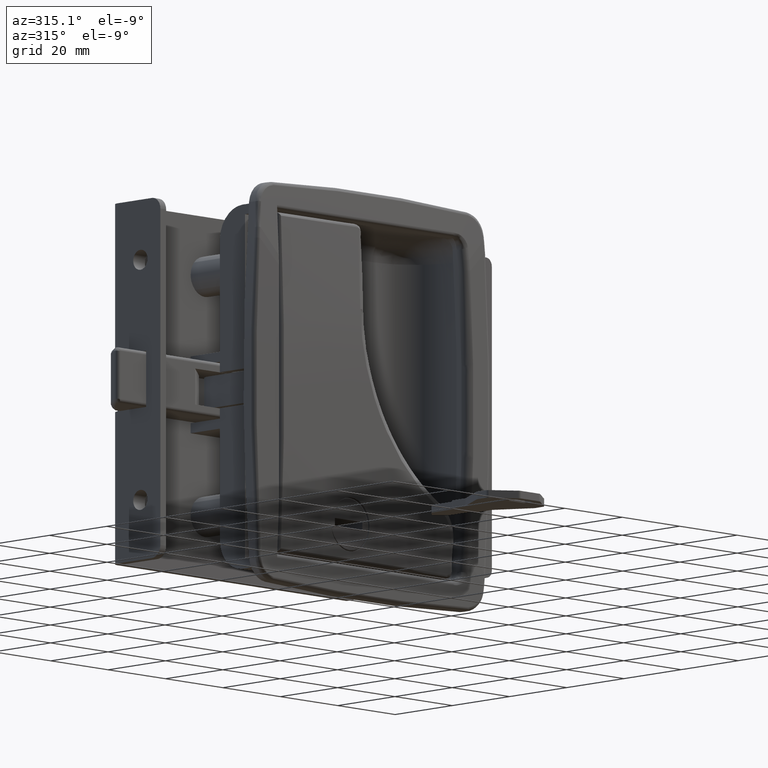
[diagram: clean part render]
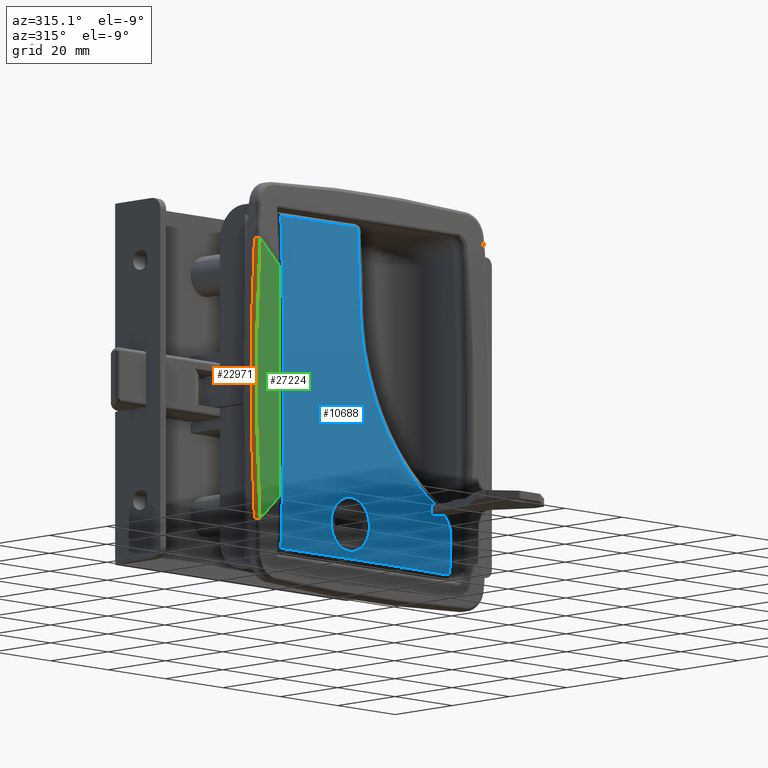
[diagram: same view with three faces highlighted in distinct colors, each labeled with its STEP entity id]
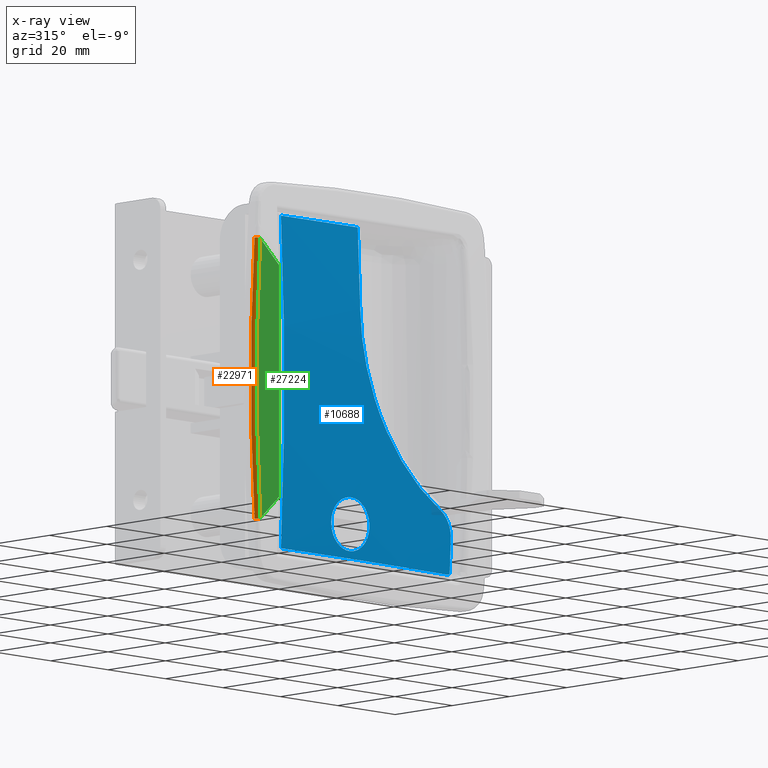
[diagram: x-ray of the same camera — body ghosted, the three highlighted faces saturated]
A machine part, auxiliary view with three faces highlighted in distinct colors.
The next image is the same camera in x-ray (body ghosted, the three faces saturated) — at least one of them is partly hidden behind the body in this view.
Their STEP definitions:

[orange] entity #22971 — the highlighted face is a freeform B-spline surface patch.
#22741=CARTESIAN_POINT('',(-40.284490174303997,-31.610345876716799,35.138241683333099));
#22742=VERTEX_POINT('',#22741);
#22743=CARTESIAN_POINT('',(-39.335762403849898,-32.609150444734013,35.069139929771900));
#22744=VERTEX_POINT('',#22743);
#22745=CARTESIAN_POINT('',(-40.284490174303997,-31.610345876716799,35.138241683333099));
#22746=CARTESIAN_POINT('',(-40.284561086535987,-31.713402865478219,35.137897235400409));
#22747=CARTESIAN_POINT('',(-40.254958750614421,-31.903627273371139,35.135201906114467));
#22748=CARTESIAN_POINT('',(-40.142911290856503,-32.142329326486511,35.126631485672441));
#22749=CARTESIAN_POINT('',(-39.983358317057672,-32.341059072482302,35.114905989977721));
#22750=CARTESIAN_POINT('',(-39.727771410793942,-32.533296856751029,35.096550487824828));
#22751=CARTESIAN_POINT('',(-39.485892724477893,-32.602037174638149,35.079563169840164));
#22752=CARTESIAN_POINT('',(-39.335762403849898,-32.609150444734013,35.069139929771900));
#22753=B_SPLINE_CURVE_WITH_KNOTS('',3,(#22745,#22746,#22747,#22748,#22749,#22750,#22751,#22752),.UNSPECIFIED.,.F.,.U.,(4,1,1,1,1,4),(0.000000270849371,0.309163048276833,0.570787489282866,0.784762741315042,1.070186831354640,1.522047837005313),.UNSPECIFIED.);
#22754=EDGE_CURVE('',#22742,#22744,#22753,.T.);
#22875=CARTESIAN_POINT('',(-39.304497501516657,-32.610680333801305,-35.419342707569363));
#22876=CARTESIAN_POINT('',(-39.312605364384495,-32.610283607556227,-35.302447805162409));
#22877=CARTESIAN_POINT('',(-39.320713227906886,-32.609886881279110,-35.185552893318579));
#22878=CARTESIAN_POINT('',(-40.139610833358873,-32.569817361428804,-23.379117926289659));
#22879=CARTESIAN_POINT('',(-40.543551704230801,-32.549063978085080,-11.689552789307243));
#22880=CARTESIAN_POINT('',(-40.543551704149898,-32.549063978089187,11.689552789314051));
#22881=CARTESIAN_POINT('',(-40.139610832530202,-32.569817361503524,23.379117926234692));
#22882=CARTESIAN_POINT('',(-39.320713227912677,-32.609886881278619,35.185552893355819));
#22883=CARTESIAN_POINT('',(-39.312605364396504,-32.610283607555097,35.302447805230315));
#22884=CARTESIAN_POINT('',(-39.304497501534868,-32.610680333799543,35.419342707667923));
#22885=CARTESIAN_POINT('',(-39.307963166117673,-32.610510835918063,-35.419586489908774));
#22886=CARTESIAN_POINT('',(-39.316071078994739,-32.610114069572305,-35.302690536228290));
#22887=CARTESIAN_POINT('',(-39.324178992199492,-32.609717303210452,-35.185794577822712));
#22888=CARTESIAN_POINT('',(-40.143079932147224,-32.569643817169244,-23.379278178755470));
#22889=CARTESIAN_POINT('',(-40.547022418605977,-32.548888473298049,-11.689632937878695));
#22890=CARTESIAN_POINT('',(-40.547022418525067,-32.548888473302149,11.689632937885516));
#22891=CARTESIAN_POINT('',(-40.143079931318319,-32.569643817226982,23.379278178700545));
#22892=CARTESIAN_POINT('',(-39.324178992205283,-32.609717303210132,35.185794577859966));
#22893=CARTESIAN_POINT('',(-39.316071079006747,-32.610114069571495,35.302690536296218));
#22894=CARTESIAN_POINT('',(-39.307963166135877,-32.610510835916799,35.419586490007340));
#22895=CARTESIAN_POINT('',(-40.260363918075555,-32.563931051069957,-35.486580417510687));
#22896=CARTESIAN_POINT('',(-40.268480279804017,-32.563523523621434,-35.369395192109501));
#22897=CARTESIAN_POINT('',(-40.276596551955087,-32.563116000670625,-35.252211260039971));
#22898=CARTESIAN_POINT('',(-41.095878906275402,-32.521979336405096,-23.423292026254760));
#22899=CARTESIAN_POINT('',(-41.500000000040444,-32.500698933793615,-11.711639874640818));
#22900=CARTESIAN_POINT('',(-41.499999999959343,-32.500698933793615,11.711639874647641));
#22901=CARTESIAN_POINT('',(-41.095878905382285,-32.521979331798988,23.423292026211637));
#22902=CARTESIAN_POINT('',(-40.276596551961539,-32.563116000716988,35.252211260077203));
#22903=CARTESIAN_POINT('',(-40.268480279817311,-32.563523523713975,35.369395192177350));
#22904=CARTESIAN_POINT('',(-40.260363918095685,-32.563931051208705,35.486580417609140));
#22905=CARTESIAN_POINT('',(-40.260150102039439,-31.608062042911627,-35.489634821389153));
#22906=CARTESIAN_POINT('',(-40.268263188627515,-31.607665787708839,-35.372507685344083));
#22907=CARTESIAN_POINT('',(-40.276376275542056,-31.607269532490108,-35.255380544585485));
#22908=CARTESIAN_POINT('',(-41.095799753810567,-31.567247672372773,-23.425514786856589));
#22909=CARTESIAN_POINT('',(-41.499999999999801,-31.546519103986061,-11.712751268870624));
#22910=CARTESIAN_POINT('',(-41.499999999999950,-31.546519103986061,11.712751268877444));
#22911=CARTESIAN_POINT('',(-41.095799753812486,-31.567247667766988,23.425514786879287));
#22912=CARTESIAN_POINT('',(-40.276376275539562,-31.607269532536414,35.255380544622042));
#22913=CARTESIAN_POINT('',(-40.268263188622910,-31.607665787801313,35.372507685410575));
#22914=CARTESIAN_POINT('',(-40.260150102032732,-31.608062043050264,35.489634821485602));
#22915=CARTESIAN_POINT('',(-40.260149327402523,-31.604599012467236,-35.489645887229287));
#22916=CARTESIAN_POINT('',(-40.268262402120648,-31.604202778853541,-35.372518961699576));
#22917=CARTESIAN_POINT('',(-40.276375477490895,-31.603806545208023,-35.255392026755970));
#22918=CARTESIAN_POINT('',(-41.095799466883854,-31.563786782080111,-23.425522844335838));
#22919=CARTESIAN_POINT('',(-41.499999999999680,-31.543059251851925,-11.712755298781532));
#22920=CARTESIAN_POINT('',(-41.500000000000128,-31.543059251851925,11.712755298788352));
#22921=CARTESIAN_POINT('',(-41.095799466889019,-31.563786777474327,23.425522844358774));
#22922=CARTESIAN_POINT('',(-40.276375477488358,-31.603806545254333,35.255392026792521));
#22923=CARTESIAN_POINT('',(-40.268262402115973,-31.604202778946011,35.372518961766062));
#22924=CARTESIAN_POINT('',(-40.260149327395709,-31.604599012605881,35.489645887325722));
#22932=(BOUNDED_SURFACE()B_SPLINE_SURFACE(3,2,((#22875,#22885,#22895,#22905,#22915),(#22876,#22886,#22896,#22906,#22916),(#22877,#22887,#22897,#22907,#22917),(#22878,#22888,#22898,#22908,#22918),(#22879,#22889,#22899,#22909,#22919),(#22880,#22890,#22900,#22910,#22920),(#22881,#22891,#22901,#22911,#22921),(#22882,#22892,#22902,#22912,#22922),(#22883,#22893,#22903,#22913,#22923),(#22884,#22894,#22904,#22914,#22924)),.UNSPECIFIED.,.F.,.F.,.U.)B_SPLINE_SURFACE_WITH_KNOTS((4,2,2,2,4),(3,1,1,3),(0.0,0.352225384790067,35.574764650979837,70.797303917169614,71.149529302050212),(0.0,0.008103684996448,1.608128516151433,1.616196381773072),.UNSPECIFIED.)GEOMETRIC_REPRESENTATION_ITEM()RATIONAL_B_SPLINE_SURFACE(((1.002794404944564,1.001397202472282,0.724130608385923,1.001391026649917,1.002782053299834),(1.002794364466981,1.001397182233490,0.724134604415982,1.001391006500584,1.002782013001168),(1.002794323989398,1.001397161994699,0.724138600446040,1.001390986351251,1.002781972702501),(1.002790235753440,1.001395117876720,0.724542199490862,1.001388951268547,1.002777902537095),(1.002788208820377,1.001394104410188,0.724742302483163,1.001387942281674,1.002775884563347),(1.002788208820377,1.001394104410188,0.724742302483163,1.001387942281674,1.002775884563347),(1.002790235753440,1.001395117876720,0.724542199490858,1.001388951268547,1.002777902537095),(1.002794323989398,1.001397161994699,0.724138600446044,1.001390986351251,1.002781972702501),(1.002794364466981,1.001397182233490,0.724134604415984,1.001391006500584,1.002782013001168),(1.002794404944564,1.001397202472282,0.724130608385925,1.001391026649917,1.002782053299834)))REPRESENTATION_ITEM('')SURFACE());
#22933=CARTESIAN_POINT('',(-40.284490174304551,-31.610345876716849,-35.138241683326299));
#22934=VERTEX_POINT('',#22933);
#22935=CARTESIAN_POINT('',(-39.335762403845301,-32.609150444734148,-35.069139929770053));
#22936=VERTEX_POINT('',#22935);
#22937=CARTESIAN_POINT('',(-40.284490174304551,-31.610345876716849,-35.138241683326299));
#22938=CARTESIAN_POINT('',(-40.284786293162803,-31.761016620945998,-35.137751425775683));
#22939=CARTESIAN_POINT('',(-40.229912351355857,-31.998586672310811,-35.133145099661903));
#22940=CARTESIAN_POINT('',(-40.054373539699270,-32.265611893520479,-35.120080788242348));
#22941=CARTESIAN_POINT('',(-39.877720450963167,-32.426819884466489,-35.107298010787801));
#22942=CARTESIAN_POINT('',(-39.642077921447132,-32.559757736428473,-35.090525027180732));
#22943=CARTESIAN_POINT('',(-39.454263774766879,-32.603450457867737,-35.077367525987697));
#22944=CARTESIAN_POINT('',(-39.335762403845301,-32.609150444734148,-35.069139929770053));
#22945=B_SPLINE_CURVE_WITH_KNOTS('',3,(#22937,#22938,#22939,#22940,#22941,#22942,#22943,#22944),.UNSPECIFIED.,.F.,.U.,(4,1,1,1,1,4),(0.000000270844896,0.451861276497756,0.713472292749553,0.951260618572377,1.165318460792908,1.522047837010032),.UNSPECIFIED.);
#22946=EDGE_CURVE('',#22934,#22936,#22945,.T.);
#22947=ORIENTED_EDGE('',*,*,#22946,.T.);
#22948=CARTESIAN_POINT('',(-39.335762403849898,-32.609150444734013,35.069139929771900));
#22949=CARTESIAN_POINT('',(-39.741160981329273,-32.589310095949912,29.224283274814770));
#22950=CARTESIAN_POINT('',(-40.348348507564680,-32.558976036192547,17.534569964886408));
#22951=CARTESIAN_POINT('',(-40.651579961243343,-32.543580700657401,9.250413E-013));
#22952=CARTESIAN_POINT('',(-40.348348071415707,-32.558975771315602,-17.534569964884518));
#22953=CARTESIAN_POINT('',(-39.741160981329628,-32.589310095949841,-29.224283274808261));
#22954=CARTESIAN_POINT('',(-39.335762403845301,-32.609150444734148,-35.069139929770053));
#22955=B_SPLINE_CURVE_WITH_KNOTS('',3,(#22948,#22949,#22950,#22951,#22952,#22953,#22954),.UNSPECIFIED.,.F.,.U.,(4,1,1,1,4),(0.0,0.250000000000000,0.500000000000000,0.750000000000000,1.0),.UNSPECIFIED.);
#22956=EDGE_CURVE('',#22744,#22936,#22955,.T.);
#22957=ORIENTED_EDGE('',*,*,#22956,.F.);
#22958=ORIENTED_EDGE('',*,*,#22754,.F.);
#22959=CARTESIAN_POINT('',(-40.284490174304551,-31.610345876716849,-35.138241683326299));
#22960=CARTESIAN_POINT('',(-40.690145532231938,-31.590532003122899,-29.281868069438019));
#22961=CARTESIAN_POINT('',(-41.297717652521392,-31.560238421485099,-17.569120841661451));
#22962=CARTESIAN_POINT('',(-41.601141173739229,-31.544863629662949,3.399402E-012));
#22963=CARTESIAN_POINT('',(-41.297717216095791,-31.560238156961631,17.569120841668202));
#22964=CARTESIAN_POINT('',(-40.690145532231497,-31.590532003122920,29.281868069444879));
#22965=CARTESIAN_POINT('',(-40.284490174304047,-31.610345876716899,35.138241683333142));
#22966=B_SPLINE_CURVE_WITH_KNOTS('',3,(#22959,#22960,#22961,#22962,#22963,#22964,#22965),.UNSPECIFIED.,.F.,.U.,(4,1,1,1,4),(0.0,0.250000000000000,0.500000000000000,0.750000000000000,1.0),.UNSPECIFIED.);
#22967=EDGE_CURVE('',#22934,#22742,#22966,.T.);
#22968=ORIENTED_EDGE('',*,*,#22967,.F.);
#22969=EDGE_LOOP('',(#22947,#22957,#22958,#22968));
#22970=FACE_OUTER_BOUND('',#22969,.T.);
#22971=ADVANCED_FACE('',(#22970),#22932,.T.);

[blue] entity #10688 — the highlighted face is a freeform B-spline surface patch.
#7058=CARTESIAN_POINT('',(-5.215457676952073,-32.446535083494162,-39.093015618912347));
#7059=VERTEX_POINT('',#7058);
#7065=CARTESIAN_POINT('',(-3.253997342440973,-32.496264386477897,-37.729916652667072));
#7066=VERTEX_POINT('',#7065);
#7067=CARTESIAN_POINT('',(-3.253997342440973,-32.496264386477897,-37.729916652667072));
#7068=CARTESIAN_POINT('',(-3.819097418378550,-32.474263355768933,-38.296766227826232));
#7069=CARTESIAN_POINT('',(-4.486997868793683,-32.457334004304052,-38.760825319167182));
#7070=CARTESIAN_POINT('',(-5.215457676952073,-32.446535083494162,-39.093015618912347));
#7071=B_SPLINE_CURVE_WITH_KNOTS('',3,(#7067,#7068,#7069,#7070),.UNSPECIFIED.,.F.,.U.,(4,4),(0.000000010450109,2.401951429445592),.UNSPECIFIED.);
#7072=EDGE_CURVE('',#7066,#7059,#7071,.T.);
#7074=CARTESIAN_POINT('',(-3.267356618105063,-32.913956256110779,-28.256120032657972));
#7075=VERTEX_POINT('',#7074);
#7076=CARTESIAN_POINT('',(-3.267356618105063,-32.913956256110779,-28.256120032657972));
#7077=CARTESIAN_POINT('',(-2.975823143123344,-32.899637697831011,-28.546166297496260));
#7078=CARTESIAN_POINT('',(-2.464154457305730,-32.869931321779731,-29.159030959920759));
#7079=CARTESIAN_POINT('',(-1.892420633681909,-32.822661541318361,-30.163159429436458));
#7080=CARTESIAN_POINT('',(-1.494600050811732,-32.772780249478387,-31.247273423269849));
#7081=CARTESIAN_POINT('',(-1.307754633141462,-32.726436983693972,-32.276290419694391));
#7082=CARTESIAN_POINT('',(-1.279951274293947,-32.679101648730558,-33.346781976601513));
#7083=CARTESIAN_POINT('',(-1.429834883689236,-32.625721227588997,-34.575600214931988));
#7084=CARTESIAN_POINT('',(-1.986477057305995,-32.558492902683469,-36.167074938987632));
#7085=CARTESIAN_POINT('',(-2.749861683501447,-32.515840480771331,-37.225701064926682));
#7086=CARTESIAN_POINT('',(-3.253997342440973,-32.496264386477897,-37.729916652667072));
#7087=B_SPLINE_CURVE_WITH_KNOTS('',3,(#7076,#7077,#7078,#7079,#7080,#7081,#7082,#7083,#7084,#7085,#7086),.UNSPECIFIED.,.F.,.U.,(4,1,1,1,1,1,1,1,4),(0.000000124942098,1.234466594172197,2.386681905797076,3.456595710132849,4.691076103395082,5.514044362711752,6.666255387384280,8.394559218409963,10.534338121824280),.UNSPECIFIED.);
#7088=EDGE_CURVE('',#7075,#7066,#7087,.T.);
#7090=CARTESIAN_POINT('',(-12.744001876423150,-32.963165511445297,-28.269482541174870));
#7091=VERTEX_POINT('',#7090);
#7092=CARTESIAN_POINT('',(-12.744001876423150,-32.963165511445297,-28.269482541174870));
#7093=CARTESIAN_POINT('',(-12.414882770908431,-32.975965232454612,-27.939864476631051));
#7094=CARTESIAN_POINT('',(-11.666066320626459,-32.998812036026237,-27.332278143020730));
#7095=CARTESIAN_POINT('',(-10.262830275410250,-33.022649805663107,-26.624193829282071));
#7096=CARTESIAN_POINT('',(-8.805841640666232,-33.029489267084223,-26.295335427778269));
#7097=CARTESIAN_POINT('',(-7.540320594482363,-33.022909238275822,-26.293745494144702));
#7098=CARTESIAN_POINT('',(-6.535080606504475,-33.011125800774167,-26.441232549752598));
#7099=CARTESIAN_POINT('',(-5.401037084640586,-32.990439042018437,-26.775350537146881));
#7100=CARTESIAN_POINT('',(-4.255577919400163,-32.957551281887717,-27.384906982743999));
#7101=CARTESIAN_POINT('',(-3.539061100647165,-32.927313997005420,-27.985469284672710));
#7102=CARTESIAN_POINT('',(-3.267356618105063,-32.913956256110779,-28.256120032657972));
#7103=B_SPLINE_CURVE_WITH_KNOTS('',3,(#7092,#7093,#7094,#7095,#7096,#7097,#7098,#7099,#7100,#7101,#7102),.UNSPECIFIED.,.F.,.U.,(4,1,1,1,1,1,1,1,4),(0.000000129585898,1.397920874985998,2.878080089392759,4.687154438460725,5.838379014545928,6.660682595348583,7.729686292404740,9.374306941049273,10.525531714157561),.UNSPECIFIED.);
#7104=EDGE_CURVE('',#7091,#7075,#7103,.T.);
#7106=CARTESIAN_POINT('',(-14.094350200129281,-32.639007267599141,-35.784162674484733));
#7107=VERTEX_POINT('',#7106);
#7108=CARTESIAN_POINT('',(-14.094350200129281,-32.639007267599141,-35.784162674484733));
#7109=CARTESIAN_POINT('',(-14.367722578561519,-32.666725325610820,-35.187936731319880));
#7110=CARTESIAN_POINT('',(-14.671134464921559,-32.714495613777537,-34.140391575453407));
#7111=CARTESIAN_POINT('',(-14.725137362928910,-32.773746766095357,-32.802672808861438));
#7112=CARTESIAN_POINT('',(-14.607352822047380,-32.819543275305527,-31.749710215234920));
#7113=CARTESIAN_POINT('',(-14.346224657745971,-32.862570133521977,-30.742496843051828));
#7114=CARTESIAN_POINT('',(-13.771593975996829,-32.914909121460511,-29.486671103918990));
#7115=CARTESIAN_POINT('',(-13.162939981739941,-32.946883085797779,-28.688785767758802));
#7116=CARTESIAN_POINT('',(-12.744001876423150,-32.963165511445297,-28.269482541174870));
#7117=B_SPLINE_CURVE_WITH_KNOTS('',3,(#7108,#7109,#7110,#7111,#7112,#7113,#7114,#7115,#7116),.UNSPECIFIED.,.F.,.U.,(4,1,1,1,1,1,4),(0.000000083661309,1.969385228032408,3.239969848843215,4.002335537249531,5.145797707855491,6.352860845901360,8.131656643578975),.UNSPECIFIED.);
#7118=EDGE_CURVE('',#7107,#7091,#7117,.T.);
#7157=CARTESIAN_POINT('',(-12.732331631413469,-32.545584225266687,-37.741595366524287));
#7158=VERTEX_POINT('',#7157);
#7159=CARTESIAN_POINT('',(-12.732331631413469,-32.545584225266687,-37.741595366524287));
#7160=CARTESIAN_POINT('',(-13.298678850866480,-32.573418765802487,-37.177520593645632));
#7161=CARTESIAN_POINT('',(-13.762477730296821,-32.605225546772267,-36.511103943972813));
#7162=CARTESIAN_POINT('',(-14.094350200129281,-32.639007267599141,-35.784162674484733));
#7163=B_SPLINE_CURVE_WITH_KNOTS('',3,(#7159,#7160,#7161,#7162),.UNSPECIFIED.,.F.,.U.,(4,4),(2.052900E-010,2.399301109942204),.UNSPECIFIED.);
#7164=EDGE_CURVE('',#7158,#7107,#7163,.T.);
#7166=CARTESIAN_POINT('',(-5.215457676952073,-32.446535083494162,-39.093015618912347));
#7167=CARTESIAN_POINT('',(-5.754533192480133,-32.438525738560408,-39.338971214404260));
#7168=CARTESIAN_POINT('',(-6.714594299463759,-32.430712057595798,-39.630656349113508));
#7169=CARTESIAN_POINT('',(-8.261685809402595,-32.433857927876723,-39.743649979267218));
#7170=CARTESIAN_POINT('',(-9.570730769562141,-32.448863899030492,-39.559196491119053));
#7171=CARTESIAN_POINT('',(-10.749974501464759,-32.473657362623442,-39.137218298947232));
#7172=CARTESIAN_POINT('',(-11.774213624434459,-32.503683685265869,-38.578046378333042));
#7173=CARTESIAN_POINT('',(-12.402860784267840,-32.529370819361993,-38.070178383016028));
#7174=CARTESIAN_POINT('',(-12.732331631413469,-32.545584225266687,-37.741595366524287));
#7175=B_SPLINE_CURVE_WITH_KNOTS('',3,(#7166,#7167,#7168,#7169,#7170,#7171,#7172,#7173,#7174),.UNSPECIFIED.,.F.,.U.,(4,1,1,1,1,1,4),(0.000000059049007,1.777717869689381,2.984049147174918,4.634770318593074,5.714099720721882,6.729948731299133,8.126726825811545),.UNSPECIFIED.);
#7176=EDGE_CURVE('',#7059,#7158,#7175,.T.);
#9152=CARTESIAN_POINT('',(28.064796894004299,-31.292009073200749,-41.231640802182703));
#9153=VERTEX_POINT('',#9152);
#9164=CARTESIAN_POINT('',(26.973415502319249,-31.331713061999899,-41.555151673850851));
#9165=VERTEX_POINT('',#9164);
#9166=CARTESIAN_POINT('',(26.973415502319249,-31.331713061999899,-41.555151673850851));
#9167=CARTESIAN_POINT('',(27.213746840772899,-31.319184283640059,-41.555431511475561));
#9168=CARTESIAN_POINT('',(27.598260388062162,-31.302888310891060,-41.485047637003483));
#9169=CARTESIAN_POINT('',(27.943758771642361,-31.294147404756419,-41.310310338609028));
#9170=CARTESIAN_POINT('',(28.064796894004299,-31.292009073200749,-41.231640802182703));
#9171=B_SPLINE_CURVE_WITH_KNOTS('',3,(#9166,#9167,#9168,#9169,#9170),.UNSPECIFIED.,.F.,.U.,(4,1,4),(0.000000030340765,0.721869359934803,1.155001399268523),.UNSPECIFIED.);
#9172=EDGE_CURVE('',#9165,#9153,#9171,.T.);
#9379=CARTESIAN_POINT('',(28.033314899863299,-31.697657675222800,-33.109043948162252));
#9380=VERTEX_POINT('',#9379);
#9394=CARTESIAN_POINT('',(28.064796894004299,-31.292009073200749,-41.231640802182703));
#9395=CARTESIAN_POINT('',(28.040505114781631,-31.345653074411981,-40.264485364555647));
#9396=CARTESIAN_POINT('',(28.006435465683349,-31.420889732914102,-38.908032793223889));
#9397=CARTESIAN_POINT('',(27.954741137279289,-31.517208182938059,-37.051383030878007));
#9398=CARTESIAN_POINT('',(27.946436123114690,-31.582950080720089,-35.711223728047827));
#9399=CARTESIAN_POINT('',(27.964751133005631,-31.645351871234119,-34.359539948370653));
#9400=CARTESIAN_POINT('',(28.011365250450400,-31.680912765886230,-33.509371264685043));
#9401=CARTESIAN_POINT('',(28.033314899863299,-31.697657675222800,-33.109043948162252));
#9402=B_SPLINE_CURVE_WITH_KNOTS('',3,(#9394,#9395,#9396,#9397,#9398,#9399,#9400,#9401),.UNSPECIFIED.,.F.,.U.,(4,1,1,1,1,4),(0.0,0.357294392214029,0.501111691239890,0.685791161082037,0.852045383786149,1.0),.UNSPECIFIED.);
#9403=EDGE_CURVE('',#9153,#9380,#9402,.T.);
#9468=CARTESIAN_POINT('',(23.921794747538652,-32.190746322301813,-25.893107604950199));
#9469=VERTEX_POINT('',#9468);
#9482=CARTESIAN_POINT('',(28.033314899863299,-31.697657675222800,-33.109043948162252));
#9483=CARTESIAN_POINT('',(28.063636827639090,-31.716300376721449,-32.651503236481780));
#9484=CARTESIAN_POINT('',(28.042169930689131,-31.754369975382868,-31.800090593639219));
#9485=CARTESIAN_POINT('',(27.816365444264431,-31.814339155432620,-30.649805589762821));
#9486=CARTESIAN_POINT('',(27.438626080856540,-31.878003736463729,-29.565878548684580));
#9487=CARTESIAN_POINT('',(26.773062382812370,-31.961861600304420,-28.305211553528899));
#9488=CARTESIAN_POINT('',(25.619960206759959,-32.070965055512517,-26.950564264720899));
#9489=CARTESIAN_POINT('',(24.514658845717669,-32.151958259667339,-26.192823159024719));
#9490=CARTESIAN_POINT('',(23.921794747538652,-32.190746322301813,-25.893107604950199));
#9491=B_SPLINE_CURVE_WITH_KNOTS('',3,(#9482,#9483,#9484,#9485,#9486,#9487,#9488,#9489,#9490),.UNSPECIFIED.,.F.,.U.,(4,1,1,1,1,1,4),(0.000000061178470,1.376762242393810,2.547022132395624,3.510773904193054,4.818652477676979,6.814993997085495,8.811301680203473),.UNSPECIFIED.);
#9492=EDGE_CURVE('',#9380,#9469,#9491,.T.);
#9610=CARTESIAN_POINT('',(-4.975787201396299,-33.167283267818704,21.110424986676851));
#9611=VERTEX_POINT('',#9610);
#9624=CARTESIAN_POINT('',(23.921794747538652,-32.190746322301813,-25.893107604950199));
#9625=CARTESIAN_POINT('',(20.955406907930200,-32.384794223969763,-24.395402780010269));
#9626=CARTESIAN_POINT('',(16.269938471840788,-32.674657218595847,-21.439537669480970));
#9627=CARTESIAN_POINT('',(10.975319586572530,-32.965415874815449,-16.794464690625549));
#9628=CARTESIAN_POINT('',(7.332182038247901,-33.144239561565691,-12.844791135700969));
#9629=CARTESIAN_POINT('',(3.921044349733950,-33.290634102432293,-8.400290196768561));
#9630=CARTESIAN_POINT('',(0.577944666173112,-33.399076137833831,-2.801819462314316));
#9631=CARTESIAN_POINT('',(-2.171902354531145,-33.435014769909444,3.692314787873054));
#9632=CARTESIAN_POINT('',(-3.865640689810570,-33.396883777162202,9.830002066436560));
#9633=CARTESIAN_POINT('',(-4.779314442916955,-33.307278469834827,15.589659484267910));
#9634=CARTESIAN_POINT('',(-4.975554438174426,-33.220563577823143,19.219892304324620));
#9635=CARTESIAN_POINT('',(-4.975787201396299,-33.167283267818704,21.110424986676851));
#9636=B_SPLINE_CURVE_WITH_KNOTS('',3,(#9624,#9625,#9626,#9627,#9628,#9629,#9630,#9631,#9632,#9633,#9634,#9635),.UNSPECIFIED.,.F.,.U.,(4,1,1,1,1,1,1,1,1,4),(0.000000023838901,9.986001021343427,16.567699949683561,21.106803292772771,26.099801338498480,33.362336768016057,40.624899922733242,47.206593363803357,52.426568938737319,58.100419839795130),.UNSPECIFIED.);
#9637=EDGE_CURVE('',#9469,#9611,#9636,.T.);
#9689=CARTESIAN_POINT('',(-4.975787201128401,-32.315322411444043,41.488204375687097));
#9690=VERTEX_POINT('',#9689);
#9713=CARTESIAN_POINT('',(-4.975787201396278,-33.167283267818817,21.110424986676861));
#9714=CARTESIAN_POINT('',(-4.974925407447117,-32.975746632031047,27.906463264008639));
#9715=CARTESIAN_POINT('',(-4.974924755371672,-32.691724612290422,34.699895019446188));
#9716=CARTESIAN_POINT('',(-4.975787201128401,-32.315322411444043,41.488204375687097));
#9717=QUASI_UNIFORM_CURVE('',3,(#9713,#9714,#9715,#9716),.UNSPECIFIED.,.F.,.U.);
#9718=EDGE_CURVE('',#9611,#9690,#9717,.T.);
#9891=CARTESIAN_POINT('',(-5.490401587933620,-32.316199347866650,41.555452074709400));
#9892=VERTEX_POINT('',#9891);
#9904=CARTESIAN_POINT('',(-4.975787201128401,-32.315322411444043,41.488204375687097));
#9905=CARTESIAN_POINT('',(-5.143426195893383,-32.314404486293093,41.532878911304472));
#9906=CARTESIAN_POINT('',(-5.316914074752036,-32.314699493859493,41.555561458583718));
#9907=CARTESIAN_POINT('',(-5.490401587933620,-32.316199347866650,41.555452074709400));
#9908=B_SPLINE_CURVE_WITH_KNOTS('',3,(#9904,#9905,#9906,#9907),.UNSPECIFIED.,.F.,.U.,(4,4),(3.561001E-009,0.520472990203763),.UNSPECIFIED.);
#9909=EDGE_CURVE('',#9690,#9892,#9908,.T.);
#9932=CARTESIAN_POINT('',(-31.526143982982301,-32.087397920849803,41.555452074709400));
#9933=VERTEX_POINT('',#9932);
#9934=CARTESIAN_POINT('',(-5.490401587933620,-32.316199347866650,41.555452074709400));
#9935=CARTESIAN_POINT('',(-18.510263503469123,-32.428326160968474,41.555452074709407));
#9936=CARTESIAN_POINT('',(-31.526143982982301,-32.087397920849803,41.555452074709400));
#9944=(BOUNDED_CURVE()B_SPLINE_CURVE(2,(#9934,#9935,#9936),.UNSPECIFIED.,.F.,.U.)CURVE()GEOMETRIC_REPRESENTATION_ITEM()QUASI_UNIFORM_CURVE()RATIONAL_B_SPLINE_CURVE((1.0,0.999848632229545,1.0))REPRESENTATION_ITEM(''));
#9945=EDGE_CURVE('',#9892,#9933,#9944,.T.);
#10030=CARTESIAN_POINT('',(-31.526143982982301,-32.087414610032397,-41.555151673850851));
#10031=VERTEX_POINT('',#10030);
#10032=CARTESIAN_POINT('',(-31.526143982982301,-32.087414610032397,-41.555151673850851));
#10033=CARTESIAN_POINT('',(-2.261580994102952,-32.853948672077252,-41.555151673850851));
#10034=CARTESIAN_POINT('',(26.973415502319249,-31.331713061999899,-41.555151673850851));
#10042=(BOUNDED_CURVE()B_SPLINE_CURVE(2,(#10032,#10033,#10034),.UNSPECIFIED.,.F.,.U.)CURVE()GEOMETRIC_REPRESENTATION_ITEM()QUASI_UNIFORM_CURVE()RATIONAL_B_SPLINE_CURVE((1.0,0.999235511861669,1.0))REPRESENTATION_ITEM(''));
#10043=EDGE_CURVE('',#10031,#9165,#10042,.T.);
#10104=CARTESIAN_POINT('',(-31.526143982982301,-32.087397920849803,41.555452074709400));
#10105=CARTESIAN_POINT('',(-31.526143982982294,-34.396068183253476,0.000150664024332));
#10106=CARTESIAN_POINT('',(-31.526143982982301,-32.087414610032397,-41.555151673850851));
#10114=(BOUNDED_CURVE()B_SPLINE_CURVE(2,(#10104,#10105,#10106),.UNSPECIFIED.,.F.,.U.)CURVE()GEOMETRIC_REPRESENTATION_ITEM()QUASI_UNIFORM_CURVE()RATIONAL_B_SPLINE_CURVE((1.0,0.998460307912104,1.0))REPRESENTATION_ITEM(''));
#10115=EDGE_CURVE('',#9933,#10031,#10114,.T.);
#10645=CARTESIAN_POINT('',(-34.514822614389949,-31.760267864713246,-45.717430976922238));
#10646=CARTESIAN_POINT('',(-18.392115201328235,-32.245701629320592,-45.742058650839901));
#10647=CARTESIAN_POINT('',(14.397478664914441,-31.822382837076539,-45.731576504225600));
#10648=CARTESIAN_POINT('',(31.032351271496609,-30.867537450376343,-45.694479983248371));
#10649=CARTESIAN_POINT('',(-34.519075940761510,-32.590339950155958,-32.140432928749966));
#10650=CARTESIAN_POINT('',(-18.391053728073668,-33.076318611073170,-32.158774529006628));
#10651=CARTESIAN_POINT('',(14.409353134498810,-32.652860221352981,-32.148288925703802));
#10652=CARTESIAN_POINT('',(31.049702825105985,-31.697289483711373,-32.117896410203869));
#10653=CARTESIAN_POINT('',(-34.519075940761518,-33.722981013391227,13.600984795840514));
#10654=CARTESIAN_POINT('',(-18.391053728073668,-34.209484758263962,13.603848575937601));
#10655=CARTESIAN_POINT('',(14.409353134498810,-33.786026368543773,13.614334179240419));
#10656=CARTESIAN_POINT('',(31.049702825105985,-32.829895338888392,13.622099446018971));
#10657=CARTESIAN_POINT('',(-34.495346349178064,-31.762274327820009,45.694227190203080));
#10658=CARTESIAN_POINT('',(-18.396975754033743,-32.246975999589360,45.711936527327062));
#10659=CARTESIAN_POINT('',(14.343104722833699,-31.824296432956800,45.722402845547499));
#10660=CARTESIAN_POINT('',(30.952897345386791,-30.870891238855936,45.714307243555453));
#10668=(BOUNDED_SURFACE()B_SPLINE_SURFACE(2,2,((#10645,#10649,#10653,#10657),(#10646,#10650,#10654,#10658),(#10647,#10651,#10655,#10659),(#10648,#10652,#10656,#10660)),.UNSPECIFIED.,.F.,.F.,.U.)B_SPLINE_SURFACE_WITH_KNOTS((3,1,3),(3,1,3),(14.889456244659421,47.143900810886898,80.462686089324947),(20.778160535240168,47.981758873801127,112.285335100746200),.UNSPECIFIED.)GEOMETRIC_REPRESENTATION_ITEM()RATIONAL_B_SPLINE_SURFACE(((1.000793361692029,1.000463592547162,1.000463592547162,1.002306177685206),(1.000329769144867,1.0,1.0,1.001842585138044),(1.000329769144867,1.0,1.0,1.001842585138044),(1.000824461990763,1.000494692845896,1.000494692845896,1.002337277983941)))REPRESENTATION_ITEM('')SURFACE());
#10669=ORIENTED_EDGE('',*,*,#10043,.T.);
#10670=ORIENTED_EDGE('',*,*,#9172,.T.);
#10671=ORIENTED_EDGE('',*,*,#9403,.T.);
#10672=ORIENTED_EDGE('',*,*,#9492,.T.);
#10673=ORIENTED_EDGE('',*,*,#9637,.T.);
#10674=ORIENTED_EDGE('',*,*,#9718,.T.);
#10675=ORIENTED_EDGE('',*,*,#9909,.T.);
#10676=ORIENTED_EDGE('',*,*,#9945,.T.);
#10677=ORIENTED_EDGE('',*,*,#10115,.T.);
#10678=EDGE_LOOP('',(#10669,#10670,#10671,#10672,#10673,#10674,#10675,#10676,#10677));
#10679=FACE_OUTER_BOUND('',#10678,.T.);
#10680=ORIENTED_EDGE('',*,*,#7104,.T.);
#10681=ORIENTED_EDGE('',*,*,#7088,.T.);
#10682=ORIENTED_EDGE('',*,*,#7072,.T.);
#10683=ORIENTED_EDGE('',*,*,#7176,.T.);
#10684=ORIENTED_EDGE('',*,*,#7164,.T.);
#10685=ORIENTED_EDGE('',*,*,#7118,.T.);
#10686=EDGE_LOOP('',(#10680,#10681,#10682,#10683,#10684,#10685));
#10687=FACE_BOUND('',#10686,.T.);
#10688=ADVANCED_FACE('',(#10679,#10687),#10668,.T.);

[green] entity #27224 — the highlighted face is a freeform B-spline surface patch.
#22743=CARTESIAN_POINT('',(-39.335762403849898,-32.609150444734013,35.069139929771900));
#22744=VERTEX_POINT('',#22743);
#22935=CARTESIAN_POINT('',(-39.335762403845301,-32.609150444734148,-35.069139929770053));
#22936=VERTEX_POINT('',#22935);
#22948=CARTESIAN_POINT('',(-39.335762403849898,-32.609150444734013,35.069139929771900));
#22949=CARTESIAN_POINT('',(-39.741160981329273,-32.589310095949912,29.224283274814770));
#22950=CARTESIAN_POINT('',(-40.348348507564680,-32.558976036192547,17.534569964886408));
#22951=CARTESIAN_POINT('',(-40.651579961243343,-32.543580700657401,9.250413E-013));
#22952=CARTESIAN_POINT('',(-40.348348071415707,-32.558975771315602,-17.534569964884518));
#22953=CARTESIAN_POINT('',(-39.741160981329628,-32.589310095949841,-29.224283274808261));
#22954=CARTESIAN_POINT('',(-39.335762403845301,-32.609150444734148,-35.069139929770053));
#22955=B_SPLINE_CURVE_WITH_KNOTS('',3,(#22948,#22949,#22950,#22951,#22952,#22953,#22954),.UNSPECIFIED.,.F.,.U.,(4,1,1,1,4),(0.0,0.250000000000000,0.500000000000000,0.750000000000000,1.0),.UNSPECIFIED.);
#22956=EDGE_CURVE('',#22744,#22936,#22955,.T.);
#23683=CARTESIAN_POINT('',(-33.0,-32.892356351772257,28.966783803954250));
#23684=VERTEX_POINT('',#23683);
#23685=CARTESIAN_POINT('',(-33.0,-32.892356351772257,28.966783803954250));
#23686=CARTESIAN_POINT('',(-39.335762403849898,-32.609150444734013,35.069139929771900));
#23687=QUASI_UNIFORM_CURVE('',1,(#23685,#23686),.UNSPECIFIED.,.F.,.U.);
#23688=EDGE_CURVE('',#23684,#22744,#23687,.T.);
#23714=CARTESIAN_POINT('',(-33.0,-32.892356351772257,-28.966783803951351));
#23715=VERTEX_POINT('',#23714);
#23716=CARTESIAN_POINT('',(-39.335762403845301,-32.609150444734148,-35.069139929770053));
#23717=CARTESIAN_POINT('',(-33.0,-32.892356351772257,-28.966783803951351));
#23718=QUASI_UNIFORM_CURVE('',1,(#23716,#23717),.UNSPECIFIED.,.F.,.U.);
#23719=EDGE_CURVE('',#22936,#23715,#23718,.T.);
#26725=CARTESIAN_POINT('',(-33.0,-32.892356351772257,-28.966783803951351));
#26726=CARTESIAN_POINT('',(-33.0,-32.892356351772257,28.966783803954250));
#26727=QUASI_UNIFORM_CURVE('',1,(#26725,#26726),.UNSPECIFIED.,.F.,.U.);
#26728=EDGE_CURVE('',#23715,#23684,#26727,.T.);
#27204=CARTESIAN_POINT('',(-32.622796727915819,-32.907522987622592,-36.822596926258591));
#27205=CARTESIAN_POINT('',(-32.622796727915819,-32.907522987622592,36.866433351172674));
#27206=CARTESIAN_POINT('',(-36.776238546057293,-32.741568716117165,-36.822596926258598));
#27207=CARTESIAN_POINT('',(-36.776238546057293,-32.741568716117165,36.866433351172674));
#27208=CARTESIAN_POINT('',(-40.927583810812521,-32.529549260143163,-36.822596926258598));
#27209=CARTESIAN_POINT('',(-40.927583810812521,-32.529549260143163,36.866433351172667));
#27217=(BOUNDED_SURFACE()B_SPLINE_SURFACE(1,2,((#27204,#27206,#27208),(#27205,#27207,#27209)),.UNSPECIFIED.,.F.,.F.,.U.)B_SPLINE_SURFACE_WITH_KNOTS((2,2),(3,3),(0.0,73.689030277431272),(1.887898366355896,10.202212412452701),.UNSPECIFIED.)GEOMETRIC_REPRESENTATION_ITEM()RATIONAL_B_SPLINE_SURFACE(((0.999837500079855,0.999739307986835,0.999671881741508),(0.999837500079855,0.999739307986835,0.999671881741508)))REPRESENTATION_ITEM('')SURFACE());
#27218=ORIENTED_EDGE('',*,*,#23688,.T.);
#27219=ORIENTED_EDGE('',*,*,#22956,.T.);
#27220=ORIENTED_EDGE('',*,*,#23719,.T.);
#27221=ORIENTED_EDGE('',*,*,#26728,.T.);
#27222=EDGE_LOOP('',(#27218,#27219,#27220,#27221));
#27223=FACE_OUTER_BOUND('',#27222,.T.);
#27224=ADVANCED_FACE('',(#27223),#27217,.T.);